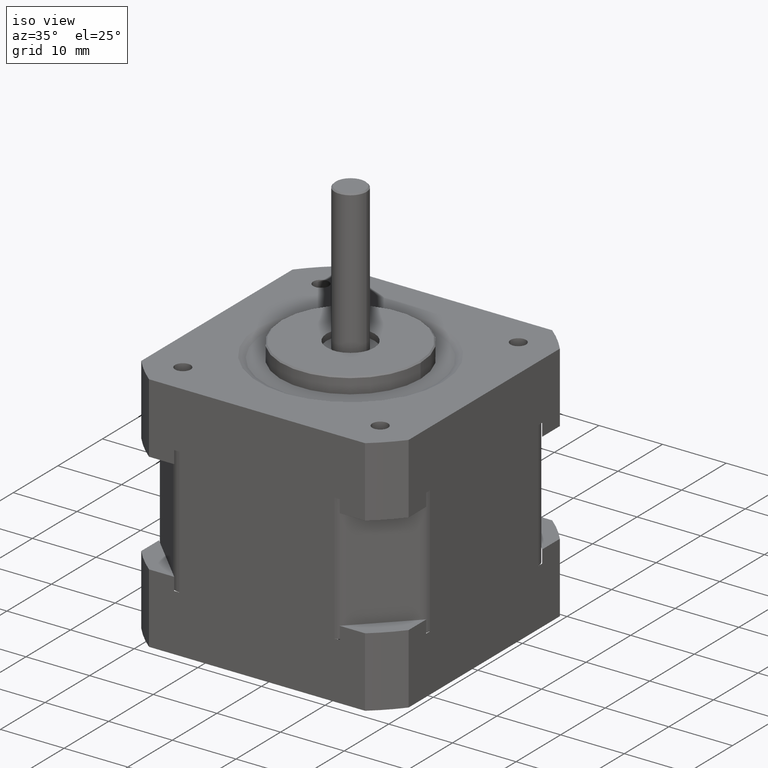
[diagram: clean part render]
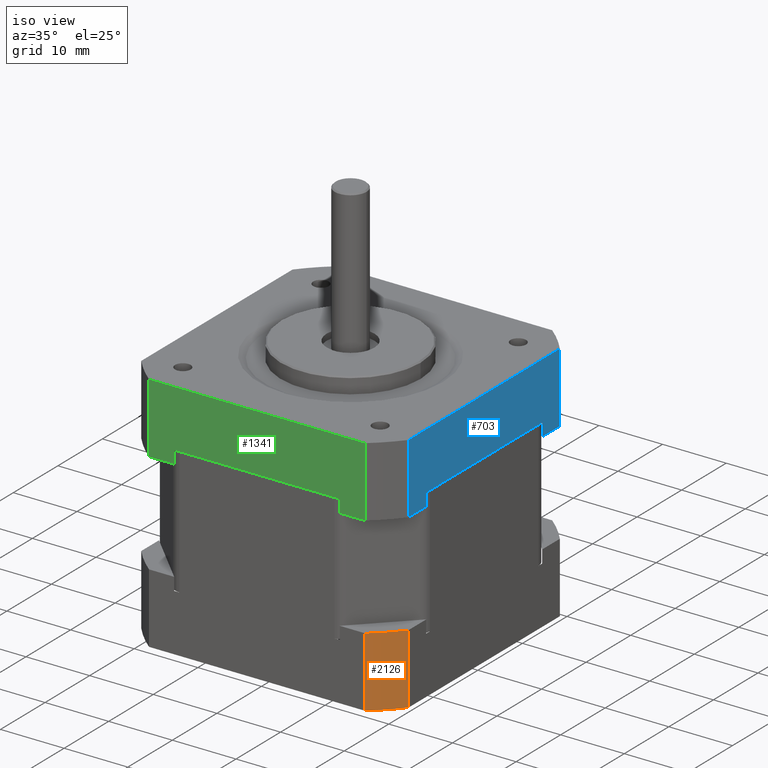
[diagram: same view with three faces highlighted in distinct colors, each labeled with its STEP entity id]
A machine part, iso view with three faces highlighted in distinct colors.
Their STEP definitions:

[orange] entity #2126 — the highlighted cylindrical surface (partial cylindrical patch) has radius 27 mm, axis along (-0, 0, -1).
#1612=CARTESIAN_POINT('',(21.000000000000007,-16.970562748477175,-2.750000000000026));
#1613=VERTEX_POINT('',#1612);
#1620=CARTESIAN_POINT('',(20.999999999999996,-16.970562748477171,-13.750000000000027));
#1621=VERTEX_POINT('',#1620);
#1622=CARTESIAN_POINT('',(21.000000000000007,-16.970562748477175,-2.750000000000026));
#1623=DIRECTION('',(0.0,0.0,-1.0));
#1624=VECTOR('',#1623,11.0);
#1625=LINE('',#1622,#1624);
#1626=EDGE_CURVE('',#1613,#1621,#1625,.T.);
#1666=CARTESIAN_POINT('',(16.970562748477139,-21.000000000000036,-2.750000000000024));
#1667=VERTEX_POINT('',#1666);
#1674=CARTESIAN_POINT('',(4.440892E-015,-2.604080E-014,-2.750000000000001));
#1675=DIRECTION('',(6.992884E-016,-5.651104E-016,1.0));
#1676=DIRECTION('',(-0.777777777777778,0.628539361054709,8.990851E-016));
#1677=AXIS2_PLACEMENT_3D('',#1674,#1675,#1676);
#1678=CIRCLE('',#1677,27.0);
#1679=EDGE_CURVE('',#1667,#1613,#1678,.T.);
#1835=CARTESIAN_POINT('',(16.970562748477132,-21.000000000000032,-13.750000000000025));
#1836=VERTEX_POINT('',#1835);
#1843=CARTESIAN_POINT('',(16.970562748477139,-21.000000000000036,-2.750000000000024));
#1844=DIRECTION('',(0.0,0.0,-1.0));
#1845=VECTOR('',#1844,11.0);
#1846=LINE('',#1843,#1845);
#1847=EDGE_CURVE('',#1667,#1836,#1846,.T.);
#1901=CARTESIAN_POINT('',(-4.183830E-015,-2.097855E-014,-13.750000000000002));
#1902=DIRECTION('',(6.992884E-016,-5.651104E-016,1.0));
#1903=DIRECTION('',(-0.777777777777778,0.628539361054709,8.990851E-016));
#1904=AXIS2_PLACEMENT_3D('',#1901,#1902,#1903);
#1905=CIRCLE('',#1904,27.0);
#1906=EDGE_CURVE('',#1836,#1621,#1905,.T.);
#2115=CARTESIAN_POINT('',(4.440892E-015,-2.604080E-014,-2.750000000000001));
#2116=DIRECTION('',(-7.840657E-016,4.602039E-016,-1.0));
#2117=DIRECTION('',(-0.777777777777778,0.628539361054709,8.990851E-016));
#2118=AXIS2_PLACEMENT_3D('',#2115,#2116,#2117);
#2119=CYLINDRICAL_SURFACE('',#2118,27.0);
#2120=ORIENTED_EDGE('',*,*,#1906,.T.);
#2121=ORIENTED_EDGE('',*,*,#1626,.F.);
#2122=ORIENTED_EDGE('',*,*,#1679,.F.);
#2123=ORIENTED_EDGE('',*,*,#1847,.T.);
#2124=EDGE_LOOP('',(#2120,#2121,#2122,#2123));
#2125=FACE_OUTER_BOUND('',#2124,.T.);
#2126=ADVANCED_FACE('',(#2125),#2119,.T.);

[blue] entity #703 — the highlighted planar face has unit normal (1, 0, 0).
#632=CARTESIAN_POINT('',(21.000000000000011,16.970562748477139,13.250000000000009));
#633=DIRECTION('',(1.0,0.0,0.0));
#634=DIRECTION('',(0.0,0.0,-1.0));
#635=AXIS2_PLACEMENT_3D('',#632,#633,#634);
#636=PLANE('',#635);
#637=CARTESIAN_POINT('',(21.000000000000011,-13.000000000000007,13.250000000000009));
#638=VERTEX_POINT('',#637);
#639=CARTESIAN_POINT('',(21.000000000000011,-13.000000000000007,15.250000000000007));
#640=VERTEX_POINT('',#639);
#641=CARTESIAN_POINT('',(21.000000000000011,-13.000000000000007,13.250000000000009));
#642=DIRECTION('',(0.0,0.0,1.0));
#643=VECTOR('',#642,2.0);
#644=LINE('',#641,#643);
#645=EDGE_CURVE('',#638,#640,#644,.T.);
#646=ORIENTED_EDGE('',*,*,#645,.T.);
#647=CARTESIAN_POINT('',(21.000000000000011,12.999999999999996,15.250000000000007));
#648=VERTEX_POINT('',#647);
#649=CARTESIAN_POINT('',(21.000000000000011,-13.000000000000007,15.250000000000007));
#650=DIRECTION('',(0.0,1.0,0.0));
#651=VECTOR('',#650,26.000000000000007);
#652=LINE('',#649,#651);
#653=EDGE_CURVE('',#640,#648,#652,.T.);
#654=ORIENTED_EDGE('',*,*,#653,.T.);
#655=CARTESIAN_POINT('',(21.000000000000011,12.999999999999996,13.250000000000009));
#656=VERTEX_POINT('',#655);
#657=CARTESIAN_POINT('',(21.000000000000011,12.999999999999996,15.250000000000007));
#658=DIRECTION('',(0.0,0.0,-1.0));
#659=VECTOR('',#658,2.0);
#660=LINE('',#657,#659);
#661=EDGE_CURVE('',#648,#656,#660,.T.);
#662=ORIENTED_EDGE('',*,*,#661,.T.);
#663=CARTESIAN_POINT('',(21.000000000000011,16.970562748477139,13.250000000000009));
#664=VERTEX_POINT('',#663);
#665=CARTESIAN_POINT('',(21.000000000000011,12.999999999999996,13.250000000000009));
#666=DIRECTION('',(0.0,1.0,0.0));
#667=VECTOR('',#666,3.970562748477146);
#668=LINE('',#665,#667);
#669=EDGE_CURVE('',#656,#664,#668,.T.);
#670=ORIENTED_EDGE('',*,*,#669,.T.);
#671=CARTESIAN_POINT('',(21.000000000000011,16.970562748477139,24.250000000000007));
#672=VERTEX_POINT('',#671);
#673=CARTESIAN_POINT('',(21.000000000000011,16.970562748477139,13.250000000000009));
#674=DIRECTION('',(0.0,0.0,1.0));
#675=VECTOR('',#674,10.999999999999998);
#676=LINE('',#673,#675);
#677=EDGE_CURVE('',#664,#672,#676,.T.);
#678=ORIENTED_EDGE('',*,*,#677,.T.);
#679=CARTESIAN_POINT('',(21.0,-16.970562748477139,24.250000000000007));
#680=VERTEX_POINT('',#679);
#681=CARTESIAN_POINT('',(21.000000000000011,16.970562748477139,24.250000000000007));
#682=DIRECTION('',(0.0,-1.0,0.0));
#683=VECTOR('',#682,33.941125496954278);
#684=LINE('',#681,#683);
#685=EDGE_CURVE('',#672,#680,#684,.T.);
#686=ORIENTED_EDGE('',*,*,#685,.T.);
#687=CARTESIAN_POINT('',(21.0,-16.970562748477139,13.250000000000009));
#688=VERTEX_POINT('',#687);
#689=CARTESIAN_POINT('',(21.0,-16.970562748477139,13.250000000000009));
#690=DIRECTION('',(0.0,0.0,1.0));
#691=VECTOR('',#690,10.999999999999998);
#692=LINE('',#689,#691);
#693=EDGE_CURVE('',#688,#680,#692,.T.);
#694=ORIENTED_EDGE('',*,*,#693,.F.);
#695=CARTESIAN_POINT('',(21.0,-16.970562748477139,13.250000000000009));
#696=DIRECTION('',(0.0,1.0,0.0));
#697=VECTOR('',#696,3.970562748477134);
#698=LINE('',#695,#697);
#699=EDGE_CURVE('',#688,#638,#698,.T.);
#700=ORIENTED_EDGE('',*,*,#699,.T.);
#701=EDGE_LOOP('',(#646,#654,#662,#670,#678,#686,#694,#700));
#702=FACE_OUTER_BOUND('',#701,.T.);
#703=ADVANCED_FACE('',(#702),#636,.T.);

[green] entity #1341 — the highlighted planar face has unit normal (0, -1, 0).
#784=CARTESIAN_POINT('',(-13.000000000000021,-20.999999999999993,13.250000000000009));
#785=VERTEX_POINT('',#784);
#792=CARTESIAN_POINT('',(-16.970562748477139,-21.0,13.250000000000009));
#793=VERTEX_POINT('',#792);
#794=CARTESIAN_POINT('',(-16.970562748477139,-21.0,13.250000000000009));
#795=DIRECTION('',(1.0,0.0,0.0));
#796=VECTOR('',#795,3.970562748477120);
#797=LINE('',#794,#796);
#798=EDGE_CURVE('',#793,#785,#797,.T.);
#823=CARTESIAN_POINT('',(12.999999999999980,-21.000000000000014,13.250000000000009));
#824=VERTEX_POINT('',#823);
#832=CARTESIAN_POINT('',(16.970562748477146,-20.999999999999993,13.250000000000009));
#833=VERTEX_POINT('',#832);
#841=CARTESIAN_POINT('',(12.999999999999980,-21.000000000000014,13.250000000000009));
#842=DIRECTION('',(1.0,0.0,0.0));
#843=VECTOR('',#842,3.970562748477166);
#844=LINE('',#841,#843);
#845=EDGE_CURVE('',#824,#833,#844,.T.);
#955=CARTESIAN_POINT('',(-16.970562748477139,-21.0,24.250000000000007));
#956=VERTEX_POINT('',#955);
#964=CARTESIAN_POINT('',(16.970562748477146,-20.999999999999993,24.250000000000007));
#965=VERTEX_POINT('',#964);
#966=CARTESIAN_POINT('',(16.970562748477146,-20.999999999999993,24.250000000000007));
#967=DIRECTION('',(-1.0,0.0,0.0));
#968=VECTOR('',#967,33.941125496954285);
#969=LINE('',#966,#968);
#970=EDGE_CURVE('',#965,#956,#969,.T.);
#1291=CARTESIAN_POINT('',(16.970562748477146,-20.999999999999993,13.250000000000009));
#1292=DIRECTION('',(0.0,0.0,1.0));
#1293=VECTOR('',#1292,10.999999999999998);
#1294=LINE('',#1291,#1293);
#1295=EDGE_CURVE('',#833,#965,#1294,.T.);
#1302=CARTESIAN_POINT('',(16.970562748477146,-20.999999999999993,13.250000000000009));
#1303=DIRECTION('',(0.0,-1.0,0.0));
#1304=DIRECTION('',(0.0,0.0,-1.0));
#1305=AXIS2_PLACEMENT_3D('',#1302,#1303,#1304);
#1306=PLANE('',#1305);
#1307=CARTESIAN_POINT('',(12.999999999999980,-21.000000000000014,15.250000000000007));
#1308=VERTEX_POINT('',#1307);
#1309=CARTESIAN_POINT('',(12.999999999999980,-21.000000000000014,15.250000000000007));
#1310=DIRECTION('',(0.0,0.0,-1.0));
#1311=VECTOR('',#1310,2.0);
#1312=LINE('',#1309,#1311);
#1313=EDGE_CURVE('',#1308,#824,#1312,.T.);
#1314=ORIENTED_EDGE('',*,*,#1313,.T.);
#1315=ORIENTED_EDGE('',*,*,#845,.T.);
#1316=ORIENTED_EDGE('',*,*,#1295,.T.);
#1317=ORIENTED_EDGE('',*,*,#970,.T.);
#1318=CARTESIAN_POINT('',(-16.970562748477139,-21.0,13.250000000000009));
#1319=DIRECTION('',(0.0,0.0,1.0));
#1320=VECTOR('',#1319,10.999999999999998);
#1321=LINE('',#1318,#1320);
#1322=EDGE_CURVE('',#793,#956,#1321,.T.);
#1323=ORIENTED_EDGE('',*,*,#1322,.F.);
#1324=ORIENTED_EDGE('',*,*,#798,.T.);
#1325=CARTESIAN_POINT('',(-13.000000000000021,-20.999999999999993,15.250000000000007));
#1326=VERTEX_POINT('',#1325);
#1327=CARTESIAN_POINT('',(-13.000000000000021,-20.999999999999993,13.250000000000009));
#1328=DIRECTION('',(0.0,0.0,1.0));
#1329=VECTOR('',#1328,2.0);
#1330=LINE('',#1327,#1329);
#1331=EDGE_CURVE('',#785,#1326,#1330,.T.);
#1332=ORIENTED_EDGE('',*,*,#1331,.T.);
#1333=CARTESIAN_POINT('',(-13.000000000000021,-20.999999999999993,15.250000000000007));
#1334=DIRECTION('',(1.0,0.0,0.0));
#1335=VECTOR('',#1334,26.0);
#1336=LINE('',#1333,#1335);
#1337=EDGE_CURVE('',#1326,#1308,#1336,.T.);
#1338=ORIENTED_EDGE('',*,*,#1337,.T.);
#1339=EDGE_LOOP('',(#1314,#1315,#1316,#1317,#1323,#1324,#1332,#1338));
#1340=FACE_OUTER_BOUND('',#1339,.T.);
#1341=ADVANCED_FACE('',(#1340),#1306,.T.);